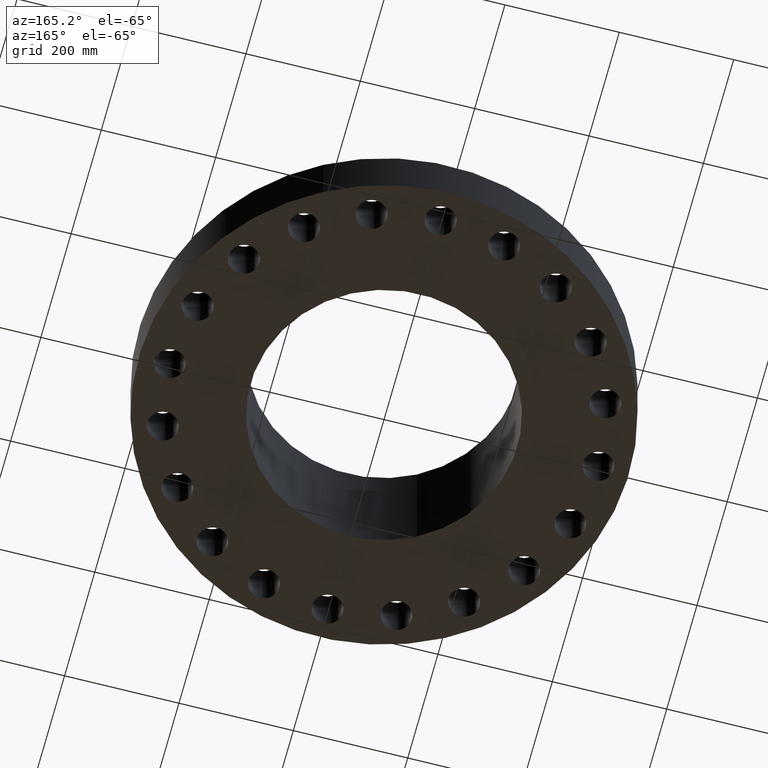
[diagram: clean part render]
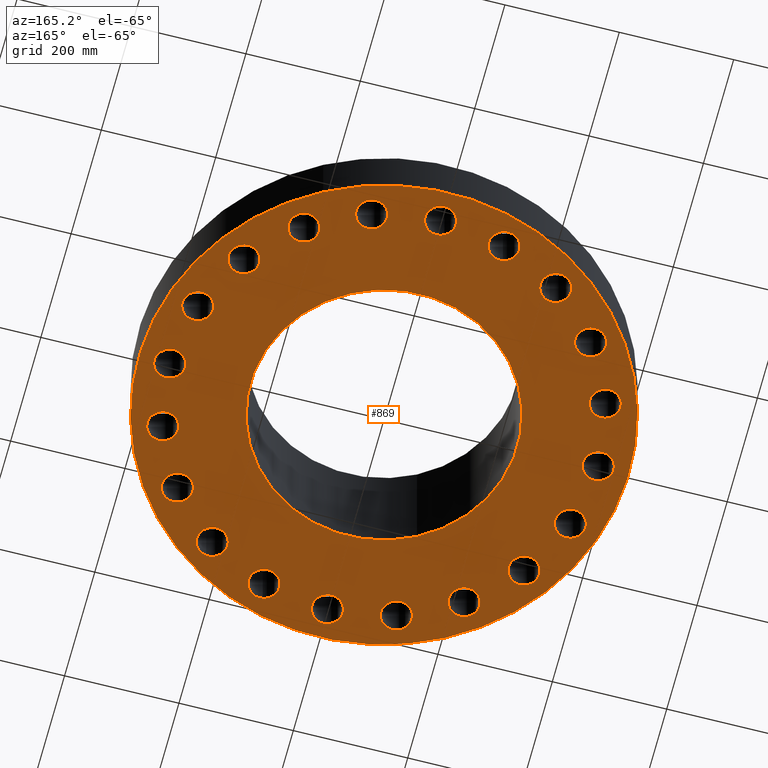
[diagram: same view with one face highlighted and labeled with its STEP entity id]
A machine part, auxiliary view. The second image highlights one B-rep face of the part: STEP entity #869.
In plain terms, the highlighted planar face has unit normal (0, 0, -1).
Its self-contained STEP definition (entity closure, byte-faithful):
#51=AXIS2_PLACEMENT_3D('Circle Axis2P3D',#49,#50,$) ;
#77=AXIS2_PLACEMENT_3D('Circle Axis2P3D',#75,#76,$) ;
#99=AXIS2_PLACEMENT_3D('Circle Axis2P3D',#97,#98,$) ;
#134=AXIS2_PLACEMENT_3D('Circle Axis2P3D',#132,#133,$) ;
#481=AXIS2_PLACEMENT_3D('Circle Axis2P3D',#479,#480,$) ;
#500=AXIS2_PLACEMENT_3D('Circle Axis2P3D',#498,#499,$) ;
#513=AXIS2_PLACEMENT_3D('Plane Axis2P3D',#510,#511,#512) ;
#529=AXIS2_PLACEMENT_3D('Circle Axis2P3D',#527,#528,$) ;
#538=AXIS2_PLACEMENT_3D('Circle Axis2P3D',#536,#537,$) ;
#547=AXIS2_PLACEMENT_3D('Circle Axis2P3D',#545,#546,$) ;
#556=AXIS2_PLACEMENT_3D('Circle Axis2P3D',#554,#555,$) ;
#565=AXIS2_PLACEMENT_3D('Circle Axis2P3D',#563,#564,$) ;
#574=AXIS2_PLACEMENT_3D('Circle Axis2P3D',#572,#573,$) ;
#583=AXIS2_PLACEMENT_3D('Circle Axis2P3D',#581,#582,$) ;
#592=AXIS2_PLACEMENT_3D('Circle Axis2P3D',#590,#591,$) ;
#601=AXIS2_PLACEMENT_3D('Circle Axis2P3D',#599,#600,$) ;
#610=AXIS2_PLACEMENT_3D('Circle Axis2P3D',#608,#609,$) ;
#619=AXIS2_PLACEMENT_3D('Circle Axis2P3D',#617,#618,$) ;
#628=AXIS2_PLACEMENT_3D('Circle Axis2P3D',#626,#627,$) ;
#637=AXIS2_PLACEMENT_3D('Circle Axis2P3D',#635,#636,$) ;
#646=AXIS2_PLACEMENT_3D('Circle Axis2P3D',#644,#645,$) ;
#655=AXIS2_PLACEMENT_3D('Circle Axis2P3D',#653,#654,$) ;
#664=AXIS2_PLACEMENT_3D('Circle Axis2P3D',#662,#663,$) ;
#673=AXIS2_PLACEMENT_3D('Circle Axis2P3D',#671,#672,$) ;
#682=AXIS2_PLACEMENT_3D('Circle Axis2P3D',#680,#681,$) ;
#691=AXIS2_PLACEMENT_3D('Circle Axis2P3D',#689,#690,$) ;
#700=AXIS2_PLACEMENT_3D('Circle Axis2P3D',#698,#699,$) ;
#709=AXIS2_PLACEMENT_3D('Circle Axis2P3D',#707,#708,$) ;
#718=AXIS2_PLACEMENT_3D('Circle Axis2P3D',#716,#717,$) ;
#727=AXIS2_PLACEMENT_3D('Circle Axis2P3D',#725,#726,$) ;
#736=AXIS2_PLACEMENT_3D('Circle Axis2P3D',#734,#735,$) ;
#745=AXIS2_PLACEMENT_3D('Circle Axis2P3D',#743,#744,$) ;
#754=AXIS2_PLACEMENT_3D('Circle Axis2P3D',#752,#753,$) ;
#763=AXIS2_PLACEMENT_3D('Circle Axis2P3D',#761,#762,$) ;
#772=AXIS2_PLACEMENT_3D('Circle Axis2P3D',#770,#771,$) ;
#781=AXIS2_PLACEMENT_3D('Circle Axis2P3D',#779,#780,$) ;
#790=AXIS2_PLACEMENT_3D('Circle Axis2P3D',#788,#789,$) ;
#799=AXIS2_PLACEMENT_3D('Circle Axis2P3D',#797,#798,$) ;
#808=AXIS2_PLACEMENT_3D('Circle Axis2P3D',#806,#807,$) ;
#817=AXIS2_PLACEMENT_3D('Circle Axis2P3D',#815,#816,$) ;
#826=AXIS2_PLACEMENT_3D('Circle Axis2P3D',#824,#825,$) ;
#835=AXIS2_PLACEMENT_3D('Circle Axis2P3D',#833,#834,$) ;
#844=AXIS2_PLACEMENT_3D('Circle Axis2P3D',#842,#843,$) ;
#853=AXIS2_PLACEMENT_3D('Circle Axis2P3D',#851,#852,$) ;
#862=AXIS2_PLACEMENT_3D('Circle Axis2P3D',#860,#861,$) ;
#44=CARTESIAN_POINT('Vertex',(13.8153745716,0.510588198616,0.)) ;
#49=CARTESIAN_POINT('Axis2P3D Location',(14.7500000001,0.,0.)) ;
#53=CARTESIAN_POINT('Vertex',(15.6846254285,-0.510588198616,0.)) ;
#75=CARTESIAN_POINT('Axis2P3D Location',(14.7500000001,0.,0.)) ;
#97=CARTESIAN_POINT('Axis2P3D Location',(0.,0.,1.67844740731E-015)) ;
#101=CARTESIAN_POINT('Vertex',(-8.09030596398,-14.809205732,1.67844740731E-015)) ;
#103=CARTESIAN_POINT('Vertex',(8.09030596398,14.809205732,1.67844740731E-015)) ;
#132=CARTESIAN_POINT('Axis2P3D Location',(0.,0.,1.67844740731E-015)) ;
#476=CARTESIAN_POINT('Vertex',(-4.40496184871,-8.06322857868,-6.65784138232E-014)) ;
#479=CARTESIAN_POINT('Axis2P3D Location',(0.,0.,-6.71378962923E-014)) ;
#483=CARTESIAN_POINT('Vertex',(4.40496184871,8.06322857868,-6.65784138232E-014)) ;
#498=CARTESIAN_POINT('Axis2P3D Location',(0.,0.,-6.71378962923E-014)) ;
#510=CARTESIAN_POINT('Axis2P3D Location',(0.,9.18800000004,0.)) ;
#527=CARTESIAN_POINT('Axis2P3D Location',(14.0280836154,-4.55800066705,0.)) ;
#531=CARTESIAN_POINT('Vertex',(13.2969824419,-3.78358729286,0.)) ;
#533=CARTESIAN_POINT('Vertex',(14.7591847889,-5.33241404124,0.)) ;
#536=CARTESIAN_POINT('Axis2P3D Location',(14.0280836154,-4.55800066705,0.)) ;
#545=CARTESIAN_POINT('Axis2P3D Location',(11.9330006671,-8.66983247135,0.)) ;
#549=CARTESIAN_POINT('Vertex',(11.4769890253,-7.7073988983,0.)) ;
#551=CARTESIAN_POINT('Vertex',(12.3890123089,-9.6322660444,-3.35689481461E-015)) ;
#554=CARTESIAN_POINT('Axis2P3D Location',(11.9330006671,-8.66983247135,0.)) ;
#563=CARTESIAN_POINT('Axis2P3D Location',(8.66983247135,-11.9330006671,0.)) ;
#567=CARTESIAN_POINT('Vertex',(8.53354795791,-10.876756599,0.)) ;
#569=CARTESIAN_POINT('Vertex',(8.80611698478,-12.9892447352,0.)) ;
#572=CARTESIAN_POINT('Axis2P3D Location',(8.66983247135,-11.9330006671,0.)) ;
#581=CARTESIAN_POINT('Axis2P3D Location',(4.55800066705,-14.0280836154,0.)) ;
#585=CARTESIAN_POINT('Vertex',(4.75478375973,-12.9814215809,0.)) ;
#587=CARTESIAN_POINT('Vertex',(4.36121757437,-15.0747456499,0.)) ;
#590=CARTESIAN_POINT('Axis2P3D Location',(4.55800066705,-14.0280836154,0.)) ;
#599=CARTESIAN_POINT('Axis2P3D Location',(4.47585975282E-015,-14.7500000001,0.)) ;
#603=CARTESIAN_POINT('Vertex',(0.510588198616,-13.8153745716,0.)) ;
#605=CARTESIAN_POINT('Vertex',(-0.510588198616,-15.6846254285,0.)) ;
#608=CARTESIAN_POINT('Axis2P3D Location',(3.63663604917E-015,-14.7500000001,0.)) ;
#617=CARTESIAN_POINT('Axis2P3D Location',(-4.55800066705,-14.0280836154,0.)) ;
#621=CARTESIAN_POINT('Vertex',(-3.78358729286,-13.2969824419,0.)) ;
#623=CARTESIAN_POINT('Vertex',(-5.33241404124,-14.7591847889,0.)) ;
#626=CARTESIAN_POINT('Axis2P3D Location',(-4.55800066705,-14.0280836154,0.)) ;
#635=CARTESIAN_POINT('Axis2P3D Location',(-8.66983247135,-11.9330006671,0.)) ;
#639=CARTESIAN_POINT('Vertex',(-7.7073988983,-11.4769890253,0.)) ;
#641=CARTESIAN_POINT('Vertex',(-9.6322660444,-12.3890123089,0.)) ;
#644=CARTESIAN_POINT('Axis2P3D Location',(-8.66983247135,-11.9330006671,0.)) ;
#653=CARTESIAN_POINT('Axis2P3D Location',(-11.9330006671,-8.66983247135,0.)) ;
#657=CARTESIAN_POINT('Vertex',(-10.876756599,-8.53354795791,0.)) ;
#659=CARTESIAN_POINT('Vertex',(-12.9892447352,-8.80611698478,0.)) ;
#662=CARTESIAN_POINT('Axis2P3D Location',(-11.9330006671,-8.66983247135,0.)) ;
#671=CARTESIAN_POINT('Axis2P3D Location',(-14.0280836154,-4.55800066705,0.)) ;
#675=CARTESIAN_POINT('Vertex',(-12.9814215809,-4.75478375973,0.)) ;
#677=CARTESIAN_POINT('Vertex',(-15.0747456499,-4.36121757437,0.)) ;
#680=CARTESIAN_POINT('Axis2P3D Location',(-14.0280836154,-4.55800066705,0.)) ;
#689=CARTESIAN_POINT('Axis2P3D Location',(-14.7500000001,-8.95171950564E-015,0.)) ;
#693=CARTESIAN_POINT('Vertex',(-13.8153745716,-0.510588198616,0.)) ;
#695=CARTESIAN_POINT('Vertex',(-15.6846254285,0.510588198616,0.)) ;
#698=CARTESIAN_POINT('Axis2P3D Location',(-14.7500000001,-8.95171950564E-015,0.)) ;
#707=CARTESIAN_POINT('Axis2P3D Location',(-14.0280836154,4.55800066705,0.)) ;
#711=CARTESIAN_POINT('Vertex',(-13.2969824419,3.78358729286,0.)) ;
#713=CARTESIAN_POINT('Vertex',(-14.7591847889,5.33241404124,0.)) ;
#716=CARTESIAN_POINT('Axis2P3D Location',(-14.0280836154,4.55800066705,0.)) ;
#725=CARTESIAN_POINT('Axis2P3D Location',(-11.9330006671,8.66983247135,0.)) ;
#729=CARTESIAN_POINT('Vertex',(-11.4769890253,7.7073988983,0.)) ;
#731=CARTESIAN_POINT('Vertex',(-12.3890123089,9.6322660444,-3.35689481461E-015)) ;
#734=CARTESIAN_POINT('Axis2P3D Location',(-11.9330006671,8.66983247135,0.)) ;
#743=CARTESIAN_POINT('Axis2P3D Location',(-8.66983247135,11.9330006671,0.)) ;
#747=CARTESIAN_POINT('Vertex',(-8.53354795791,10.876756599,0.)) ;
#749=CARTESIAN_POINT('Vertex',(-8.80611698478,12.9892447352,0.)) ;
#752=CARTESIAN_POINT('Axis2P3D Location',(-8.66983247135,11.9330006671,0.)) ;
#761=CARTESIAN_POINT('Axis2P3D Location',(-4.55800066705,14.0280836154,0.)) ;
#765=CARTESIAN_POINT('Vertex',(-4.75478375973,12.9814215809,0.)) ;
#767=CARTESIAN_POINT('Vertex',(-4.36121757437,15.0747456499,-3.35689481461E-015)) ;
#770=CARTESIAN_POINT('Axis2P3D Location',(-4.55800066705,14.0280836154,0.)) ;
#779=CARTESIAN_POINT('Axis2P3D Location',(-1.72040859249E-014,14.7500000001,0.)) ;
#783=CARTESIAN_POINT('Vertex',(-0.510588198616,13.8153745716,0.)) ;
#785=CARTESIAN_POINT('Vertex',(0.510588198616,15.6846254285,0.)) ;
#788=CARTESIAN_POINT('Axis2P3D Location',(-1.44066735794E-014,14.7500000001,0.)) ;
#797=CARTESIAN_POINT('Axis2P3D Location',(4.55800066705,14.0280836154,0.)) ;
#801=CARTESIAN_POINT('Vertex',(3.78358729286,13.2969824419,0.)) ;
#803=CARTESIAN_POINT('Vertex',(5.33241404124,14.7591847889,-3.35689481461E-015)) ;
#806=CARTESIAN_POINT('Axis2P3D Location',(4.55800066705,14.0280836154,0.)) ;
#815=CARTESIAN_POINT('Axis2P3D Location',(8.66983247135,11.9330006671,0.)) ;
#819=CARTESIAN_POINT('Vertex',(7.7073988983,11.4769890253,0.)) ;
#821=CARTESIAN_POINT('Vertex',(9.6322660444,12.3890123089,0.)) ;
#824=CARTESIAN_POINT('Axis2P3D Location',(8.66983247135,11.9330006671,0.)) ;
#833=CARTESIAN_POINT('Axis2P3D Location',(11.9330006671,8.66983247135,0.)) ;
#837=CARTESIAN_POINT('Vertex',(10.876756599,8.53354795791,0.)) ;
#839=CARTESIAN_POINT('Vertex',(12.9892447352,8.80611698478,0.)) ;
#842=CARTESIAN_POINT('Axis2P3D Location',(11.9330006671,8.66983247135,0.)) ;
#851=CARTESIAN_POINT('Axis2P3D Location',(14.0280836154,4.55800066705,0.)) ;
#855=CARTESIAN_POINT('Vertex',(12.9814215809,4.75478375973,0.)) ;
#857=CARTESIAN_POINT('Vertex',(15.0747456499,4.36121757437,-3.35689481461E-015)) ;
#860=CARTESIAN_POINT('Axis2P3D Location',(14.0280836154,4.55800066705,0.)) ;
#50=DIRECTION('Axis2P3D Direction',(0.,-0.,-0.0393700787402)) ;
#76=DIRECTION('Axis2P3D Direction',(0.,-0.,-0.0393700787402)) ;
#98=DIRECTION('Axis2P3D Direction',(0.,0.,-0.0393700787402)) ;
#133=DIRECTION('Axis2P3D Direction',(0.,0.,-0.0393700787402)) ;
#480=DIRECTION('Axis2P3D Direction',(0.,0.,-0.0393700787402)) ;
#499=DIRECTION('Axis2P3D Direction',(0.,0.,-0.0393700787402)) ;
#511=DIRECTION('Axis2P3D Direction',(0.,0.,-0.0393700787402)) ;
#512=DIRECTION('Axis2P3D XDirection',(0.0393700787402,0.,0.)) ;
#528=DIRECTION('Axis2P3D Direction',(0.,0.,-0.0393700787402)) ;
#537=DIRECTION('Axis2P3D Direction',(0.,0.,-0.0393700787402)) ;
#546=DIRECTION('Axis2P3D Direction',(0.,0.,-0.0393700787402)) ;
#555=DIRECTION('Axis2P3D Direction',(0.,0.,-0.0393700787402)) ;
#564=DIRECTION('Axis2P3D Direction',(0.,0.,-0.0393700787402)) ;
#573=DIRECTION('Axis2P3D Direction',(0.,0.,-0.0393700787402)) ;
#582=DIRECTION('Axis2P3D Direction',(0.,0.,-0.0393700787402)) ;
#591=DIRECTION('Axis2P3D Direction',(0.,0.,-0.0393700787402)) ;
#600=DIRECTION('Axis2P3D Direction',(0.,0.,-0.0393700787402)) ;
#609=DIRECTION('Axis2P3D Direction',(0.,0.,-0.0393700787402)) ;
#618=DIRECTION('Axis2P3D Direction',(0.,0.,-0.0393700787402)) ;
#627=DIRECTION('Axis2P3D Direction',(0.,0.,-0.0393700787402)) ;
#636=DIRECTION('Axis2P3D Direction',(0.,0.,-0.0393700787402)) ;
#645=DIRECTION('Axis2P3D Direction',(0.,0.,-0.0393700787402)) ;
#654=DIRECTION('Axis2P3D Direction',(0.,0.,-0.0393700787402)) ;
#663=DIRECTION('Axis2P3D Direction',(0.,0.,-0.0393700787402)) ;
#672=DIRECTION('Axis2P3D Direction',(0.,0.,-0.0393700787402)) ;
#681=DIRECTION('Axis2P3D Direction',(0.,0.,-0.0393700787402)) ;
#690=DIRECTION('Axis2P3D Direction',(0.,0.,-0.0393700787402)) ;
#699=DIRECTION('Axis2P3D Direction',(0.,0.,-0.0393700787402)) ;
#708=DIRECTION('Axis2P3D Direction',(0.,0.,-0.0393700787402)) ;
#717=DIRECTION('Axis2P3D Direction',(0.,0.,-0.0393700787402)) ;
#726=DIRECTION('Axis2P3D Direction',(0.,0.,-0.0393700787402)) ;
#735=DIRECTION('Axis2P3D Direction',(0.,0.,-0.0393700787402)) ;
#744=DIRECTION('Axis2P3D Direction',(0.,0.,-0.0393700787402)) ;
#753=DIRECTION('Axis2P3D Direction',(0.,0.,-0.0393700787402)) ;
#762=DIRECTION('Axis2P3D Direction',(0.,0.,-0.0393700787402)) ;
#771=DIRECTION('Axis2P3D Direction',(0.,0.,-0.0393700787402)) ;
#780=DIRECTION('Axis2P3D Direction',(0.,0.,-0.0393700787402)) ;
#789=DIRECTION('Axis2P3D Direction',(0.,0.,-0.0393700787402)) ;
#798=DIRECTION('Axis2P3D Direction',(0.,0.,-0.0393700787402)) ;
#807=DIRECTION('Axis2P3D Direction',(0.,0.,-0.0393700787402)) ;
#816=DIRECTION('Axis2P3D Direction',(0.,0.,-0.0393700787402)) ;
#825=DIRECTION('Axis2P3D Direction',(0.,0.,-0.0393700787402)) ;
#834=DIRECTION('Axis2P3D Direction',(0.,0.,-0.0393700787402)) ;
#843=DIRECTION('Axis2P3D Direction',(0.,0.,-0.0393700787402)) ;
#852=DIRECTION('Axis2P3D Direction',(0.,0.,-0.0393700787402)) ;
#861=DIRECTION('Axis2P3D Direction',(0.,0.,-0.0393700787402)) ;
#516=ORIENTED_EDGE('',*,*,#105,.T.) ;
#517=ORIENTED_EDGE('',*,*,#136,.T.) ;
#520=ORIENTED_EDGE('',*,*,#79,.F.) ;
#521=ORIENTED_EDGE('',*,*,#55,.F.) ;
#524=ORIENTED_EDGE('',*,*,#502,.F.) ;
#525=ORIENTED_EDGE('',*,*,#485,.F.) ;
#542=ORIENTED_EDGE('',*,*,#535,.F.) ;
#543=ORIENTED_EDGE('',*,*,#540,.F.) ;
#560=ORIENTED_EDGE('',*,*,#553,.F.) ;
#561=ORIENTED_EDGE('',*,*,#558,.F.) ;
#578=ORIENTED_EDGE('',*,*,#571,.F.) ;
#579=ORIENTED_EDGE('',*,*,#576,.F.) ;
#596=ORIENTED_EDGE('',*,*,#589,.F.) ;
#597=ORIENTED_EDGE('',*,*,#594,.F.) ;
#614=ORIENTED_EDGE('',*,*,#607,.F.) ;
#615=ORIENTED_EDGE('',*,*,#612,.F.) ;
#632=ORIENTED_EDGE('',*,*,#625,.F.) ;
#633=ORIENTED_EDGE('',*,*,#630,.F.) ;
#650=ORIENTED_EDGE('',*,*,#643,.F.) ;
#651=ORIENTED_EDGE('',*,*,#648,.F.) ;
#668=ORIENTED_EDGE('',*,*,#661,.F.) ;
#669=ORIENTED_EDGE('',*,*,#666,.F.) ;
#686=ORIENTED_EDGE('',*,*,#679,.F.) ;
#687=ORIENTED_EDGE('',*,*,#684,.F.) ;
#704=ORIENTED_EDGE('',*,*,#697,.F.) ;
#705=ORIENTED_EDGE('',*,*,#702,.F.) ;
#722=ORIENTED_EDGE('',*,*,#715,.F.) ;
#723=ORIENTED_EDGE('',*,*,#720,.F.) ;
#740=ORIENTED_EDGE('',*,*,#733,.F.) ;
#741=ORIENTED_EDGE('',*,*,#738,.F.) ;
#758=ORIENTED_EDGE('',*,*,#751,.F.) ;
#759=ORIENTED_EDGE('',*,*,#756,.F.) ;
#776=ORIENTED_EDGE('',*,*,#769,.F.) ;
#777=ORIENTED_EDGE('',*,*,#774,.F.) ;
#794=ORIENTED_EDGE('',*,*,#787,.F.) ;
#795=ORIENTED_EDGE('',*,*,#792,.F.) ;
#812=ORIENTED_EDGE('',*,*,#805,.F.) ;
#813=ORIENTED_EDGE('',*,*,#810,.F.) ;
#830=ORIENTED_EDGE('',*,*,#823,.F.) ;
#831=ORIENTED_EDGE('',*,*,#828,.F.) ;
#848=ORIENTED_EDGE('',*,*,#841,.F.) ;
#849=ORIENTED_EDGE('',*,*,#846,.F.) ;
#866=ORIENTED_EDGE('',*,*,#859,.F.) ;
#867=ORIENTED_EDGE('',*,*,#864,.F.) ;
#522=FACE_BOUND('',#519,.T.) ;
#526=FACE_BOUND('',#523,.T.) ;
#544=FACE_BOUND('',#541,.T.) ;
#562=FACE_BOUND('',#559,.T.) ;
#580=FACE_BOUND('',#577,.T.) ;
#598=FACE_BOUND('',#595,.T.) ;
#616=FACE_BOUND('',#613,.T.) ;
#634=FACE_BOUND('',#631,.T.) ;
#652=FACE_BOUND('',#649,.T.) ;
#670=FACE_BOUND('',#667,.T.) ;
#688=FACE_BOUND('',#685,.T.) ;
#706=FACE_BOUND('',#703,.T.) ;
#724=FACE_BOUND('',#721,.T.) ;
#742=FACE_BOUND('',#739,.T.) ;
#760=FACE_BOUND('',#757,.T.) ;
#778=FACE_BOUND('',#775,.T.) ;
#796=FACE_BOUND('',#793,.T.) ;
#814=FACE_BOUND('',#811,.T.) ;
#832=FACE_BOUND('',#829,.T.) ;
#850=FACE_BOUND('',#847,.T.) ;
#868=FACE_BOUND('',#865,.T.) ;
#869=ADVANCED_FACE('PartBody',(#518,#522,#526,#544,#562,#580,#598,#616,#634,#652,#670,#688,#706,#724,#742,#760,#778,#796,#814,#832,#850,#868),#514,.T.) ;
#52=CIRCLE('generated circle',#51,1.065) ;
#78=CIRCLE('generated circle',#77,1.065) ;
#100=CIRCLE('generated circle',#99,16.8750000001) ;
#135=CIRCLE('generated circle',#134,16.8750000001) ;
#482=CIRCLE('generated circle',#481,9.18800000004) ;
#501=CIRCLE('generated circle',#500,9.18800000004) ;
#530=CIRCLE('generated circle',#529,1.065) ;
#539=CIRCLE('generated circle',#538,1.065) ;
#548=CIRCLE('generated circle',#547,1.065) ;
#557=CIRCLE('generated circle',#556,1.065) ;
#566=CIRCLE('generated circle',#565,1.065) ;
#575=CIRCLE('generated circle',#574,1.065) ;
#584=CIRCLE('generated circle',#583,1.065) ;
#593=CIRCLE('generated circle',#592,1.065) ;
#602=CIRCLE('generated circle',#601,1.065) ;
#611=CIRCLE('generated circle',#610,1.065) ;
#620=CIRCLE('generated circle',#619,1.065) ;
#629=CIRCLE('generated circle',#628,1.065) ;
#638=CIRCLE('generated circle',#637,1.065) ;
#647=CIRCLE('generated circle',#646,1.065) ;
#656=CIRCLE('generated circle',#655,1.065) ;
#665=CIRCLE('generated circle',#664,1.065) ;
#674=CIRCLE('generated circle',#673,1.065) ;
#683=CIRCLE('generated circle',#682,1.065) ;
#692=CIRCLE('generated circle',#691,1.065) ;
#701=CIRCLE('generated circle',#700,1.065) ;
#710=CIRCLE('generated circle',#709,1.065) ;
#719=CIRCLE('generated circle',#718,1.065) ;
#728=CIRCLE('generated circle',#727,1.065) ;
#737=CIRCLE('generated circle',#736,1.065) ;
#746=CIRCLE('generated circle',#745,1.065) ;
#755=CIRCLE('generated circle',#754,1.065) ;
#764=CIRCLE('generated circle',#763,1.065) ;
#773=CIRCLE('generated circle',#772,1.065) ;
#782=CIRCLE('generated circle',#781,1.065) ;
#791=CIRCLE('generated circle',#790,1.065) ;
#800=CIRCLE('generated circle',#799,1.065) ;
#809=CIRCLE('generated circle',#808,1.065) ;
#818=CIRCLE('generated circle',#817,1.065) ;
#827=CIRCLE('generated circle',#826,1.065) ;
#836=CIRCLE('generated circle',#835,1.065) ;
#845=CIRCLE('generated circle',#844,1.065) ;
#854=CIRCLE('generated circle',#853,1.065) ;
#863=CIRCLE('generated circle',#862,1.065) ;
#55=EDGE_CURVE('',#45,#54,#52,.T.) ;
#79=EDGE_CURVE('',#54,#45,#78,.T.) ;
#105=EDGE_CURVE('',#102,#104,#100,.T.) ;
#136=EDGE_CURVE('',#104,#102,#135,.T.) ;
#485=EDGE_CURVE('',#477,#484,#482,.T.) ;
#502=EDGE_CURVE('',#484,#477,#501,.T.) ;
#535=EDGE_CURVE('',#532,#534,#530,.T.) ;
#540=EDGE_CURVE('',#534,#532,#539,.T.) ;
#553=EDGE_CURVE('',#550,#552,#548,.T.) ;
#558=EDGE_CURVE('',#552,#550,#557,.T.) ;
#571=EDGE_CURVE('',#568,#570,#566,.T.) ;
#576=EDGE_CURVE('',#570,#568,#575,.T.) ;
#589=EDGE_CURVE('',#586,#588,#584,.T.) ;
#594=EDGE_CURVE('',#588,#586,#593,.T.) ;
#607=EDGE_CURVE('',#604,#606,#602,.T.) ;
#612=EDGE_CURVE('',#606,#604,#611,.T.) ;
#625=EDGE_CURVE('',#622,#624,#620,.T.) ;
#630=EDGE_CURVE('',#624,#622,#629,.T.) ;
#643=EDGE_CURVE('',#640,#642,#638,.T.) ;
#648=EDGE_CURVE('',#642,#640,#647,.T.) ;
#661=EDGE_CURVE('',#658,#660,#656,.T.) ;
#666=EDGE_CURVE('',#660,#658,#665,.T.) ;
#679=EDGE_CURVE('',#676,#678,#674,.T.) ;
#684=EDGE_CURVE('',#678,#676,#683,.T.) ;
#697=EDGE_CURVE('',#694,#696,#692,.T.) ;
#702=EDGE_CURVE('',#696,#694,#701,.T.) ;
#715=EDGE_CURVE('',#712,#714,#710,.T.) ;
#720=EDGE_CURVE('',#714,#712,#719,.T.) ;
#733=EDGE_CURVE('',#730,#732,#728,.T.) ;
#738=EDGE_CURVE('',#732,#730,#737,.T.) ;
#751=EDGE_CURVE('',#748,#750,#746,.T.) ;
#756=EDGE_CURVE('',#750,#748,#755,.T.) ;
#769=EDGE_CURVE('',#766,#768,#764,.T.) ;
#774=EDGE_CURVE('',#768,#766,#773,.T.) ;
#787=EDGE_CURVE('',#784,#786,#782,.T.) ;
#792=EDGE_CURVE('',#786,#784,#791,.T.) ;
#805=EDGE_CURVE('',#802,#804,#800,.T.) ;
#810=EDGE_CURVE('',#804,#802,#809,.T.) ;
#823=EDGE_CURVE('',#820,#822,#818,.T.) ;
#828=EDGE_CURVE('',#822,#820,#827,.T.) ;
#841=EDGE_CURVE('',#838,#840,#836,.T.) ;
#846=EDGE_CURVE('',#840,#838,#845,.T.) ;
#859=EDGE_CURVE('',#856,#858,#854,.T.) ;
#864=EDGE_CURVE('',#858,#856,#863,.T.) ;
#515=EDGE_LOOP('',(#516,#517)) ;
#519=EDGE_LOOP('',(#520,#521)) ;
#523=EDGE_LOOP('',(#524,#525)) ;
#541=EDGE_LOOP('',(#542,#543)) ;
#559=EDGE_LOOP('',(#560,#561)) ;
#577=EDGE_LOOP('',(#578,#579)) ;
#595=EDGE_LOOP('',(#596,#597)) ;
#613=EDGE_LOOP('',(#614,#615)) ;
#631=EDGE_LOOP('',(#632,#633)) ;
#649=EDGE_LOOP('',(#650,#651)) ;
#667=EDGE_LOOP('',(#668,#669)) ;
#685=EDGE_LOOP('',(#686,#687)) ;
#703=EDGE_LOOP('',(#704,#705)) ;
#721=EDGE_LOOP('',(#722,#723)) ;
#739=EDGE_LOOP('',(#740,#741)) ;
#757=EDGE_LOOP('',(#758,#759)) ;
#775=EDGE_LOOP('',(#776,#777)) ;
#793=EDGE_LOOP('',(#794,#795)) ;
#811=EDGE_LOOP('',(#812,#813)) ;
#829=EDGE_LOOP('',(#830,#831)) ;
#847=EDGE_LOOP('',(#848,#849)) ;
#865=EDGE_LOOP('',(#866,#867)) ;
#518=FACE_OUTER_BOUND('',#515,.T.) ;
#514=PLANE('',#513) ;
#45=VERTEX_POINT('',#44) ;
#54=VERTEX_POINT('',#53) ;
#102=VERTEX_POINT('',#101) ;
#104=VERTEX_POINT('',#103) ;
#477=VERTEX_POINT('',#476) ;
#484=VERTEX_POINT('',#483) ;
#532=VERTEX_POINT('',#531) ;
#534=VERTEX_POINT('',#533) ;
#550=VERTEX_POINT('',#549) ;
#552=VERTEX_POINT('',#551) ;
#568=VERTEX_POINT('',#567) ;
#570=VERTEX_POINT('',#569) ;
#586=VERTEX_POINT('',#585) ;
#588=VERTEX_POINT('',#587) ;
#604=VERTEX_POINT('',#603) ;
#606=VERTEX_POINT('',#605) ;
#622=VERTEX_POINT('',#621) ;
#624=VERTEX_POINT('',#623) ;
#640=VERTEX_POINT('',#639) ;
#642=VERTEX_POINT('',#641) ;
#658=VERTEX_POINT('',#657) ;
#660=VERTEX_POINT('',#659) ;
#676=VERTEX_POINT('',#675) ;
#678=VERTEX_POINT('',#677) ;
#694=VERTEX_POINT('',#693) ;
#696=VERTEX_POINT('',#695) ;
#712=VERTEX_POINT('',#711) ;
#714=VERTEX_POINT('',#713) ;
#730=VERTEX_POINT('',#729) ;
#732=VERTEX_POINT('',#731) ;
#748=VERTEX_POINT('',#747) ;
#750=VERTEX_POINT('',#749) ;
#766=VERTEX_POINT('',#765) ;
#768=VERTEX_POINT('',#767) ;
#784=VERTEX_POINT('',#783) ;
#786=VERTEX_POINT('',#785) ;
#802=VERTEX_POINT('',#801) ;
#804=VERTEX_POINT('',#803) ;
#820=VERTEX_POINT('',#819) ;
#822=VERTEX_POINT('',#821) ;
#838=VERTEX_POINT('',#837) ;
#840=VERTEX_POINT('',#839) ;
#856=VERTEX_POINT('',#855) ;
#858=VERTEX_POINT('',#857) ;